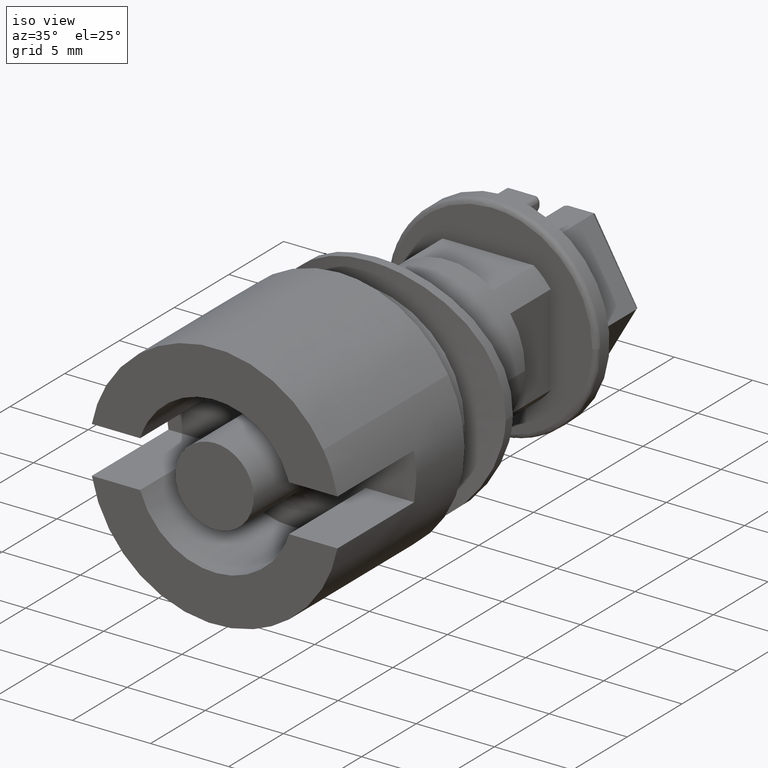
[diagram: clean part render]
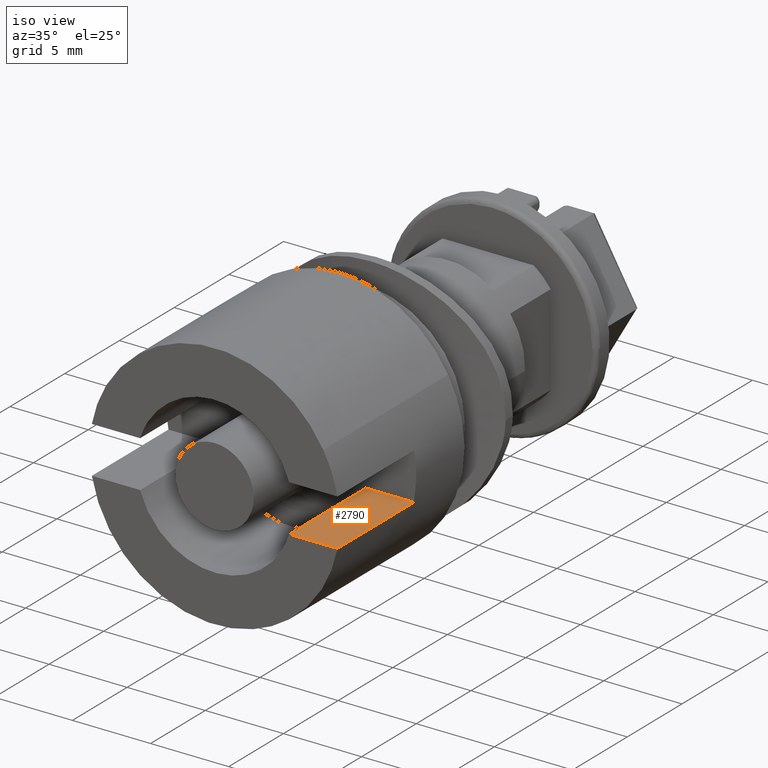
[diagram: same view with one face highlighted and labeled with its STEP entity id]
A machine part, iso view. The second image highlights one B-rep face of the part: STEP entity #2790.
In plain terms, the highlighted face is a freeform B-spline surface patch.
Its self-contained STEP definition (entity closure, byte-faithful):
#935=CARTESIAN_POINT('',(7.858117195991370,0.0,-1.500000071246165));
#936=VERTEX_POINT('',#935);
#950=CARTESIAN_POINT('',(7.858117195991370,-7.0,-1.500000071246165));
#951=VERTEX_POINT('',#950);
#952=CARTESIAN_POINT('',(7.858117195991370,0.0,-1.500000071246165));
#953=CARTESIAN_POINT('',(7.858117195991370,-7.0,-1.500000071246165));
#954=QUASI_UNIFORM_CURVE('',1,(#952,#953),.UNSPECIFIED.,.F.,.U.);
#955=EDGE_CURVE('',#936,#951,#954,.T.);
#2738=CARTESIAN_POINT('',(4.769696233633130,0.0,-1.500000071246170));
#2739=VERTEX_POINT('',#2738);
#2755=CARTESIAN_POINT('',(4.769696233633130,0.0,-1.500000071246170));
#2756=CARTESIAN_POINT('',(7.858117195991370,0.0,-1.500000071246165));
#2757=QUASI_UNIFORM_CURVE('',1,(#2755,#2756),.UNSPECIFIED.,.F.,.U.);
#2758=EDGE_CURVE('',#2739,#936,#2757,.T.);
#2769=CARTESIAN_POINT('',(8.012383730099547,-7.349649986432643,-1.500000071246175));
#2770=CARTESIAN_POINT('',(4.615429533849143,-7.349649986432643,-1.500000071246175));
#2771=CARTESIAN_POINT('',(8.012383730099547,0.349650174187273,-1.500000071246175));
#2772=CARTESIAN_POINT('',(4.615429533849143,0.349650174187273,-1.500000071246175));
#2773=B_SPLINE_SURFACE_WITH_KNOTS('',1,1,((#2769,#2771),(#2770,#2772)),.UNSPECIFIED.,.F.,.F.,.U.,(2,2),(2,2),(0.0,3.396954196250404),(0.0,7.699300160619915),.UNSPECIFIED.);
#2774=CARTESIAN_POINT('',(4.769696233633130,-7.0,-1.500000071246170));
#2775=VERTEX_POINT('',#2774);
#2776=CARTESIAN_POINT('',(4.769696233633130,-7.0,-1.500000071246170));
#2777=CARTESIAN_POINT('',(7.858117195991370,-7.0,-1.500000071246165));
#2778=QUASI_UNIFORM_CURVE('',1,(#2776,#2777),.UNSPECIFIED.,.F.,.U.);
#2779=EDGE_CURVE('',#2775,#951,#2778,.T.);
#2780=ORIENTED_EDGE('',*,*,#2779,.T.);
#2781=ORIENTED_EDGE('',*,*,#955,.F.);
#2782=ORIENTED_EDGE('',*,*,#2758,.F.);
#2783=CARTESIAN_POINT('',(4.769696233633130,0.0,-1.500000071246170));
#2784=CARTESIAN_POINT('',(4.769696233633130,-7.0,-1.500000071246170));
#2785=QUASI_UNIFORM_CURVE('',1,(#2783,#2784),.UNSPECIFIED.,.F.,.U.);
#2786=EDGE_CURVE('',#2739,#2775,#2785,.T.);
#2787=ORIENTED_EDGE('',*,*,#2786,.T.);
#2788=EDGE_LOOP('',(#2780,#2781,#2782,#2787));
#2789=FACE_OUTER_BOUND('',#2788,.T.);
#2790=ADVANCED_FACE('',(#2789),#2773,.F.);